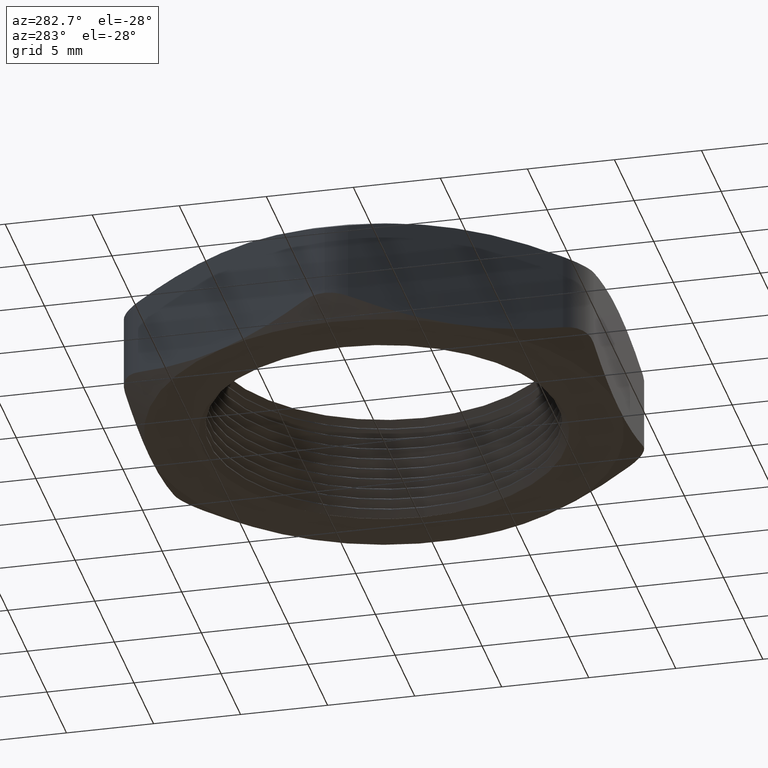
[diagram: clean part render]
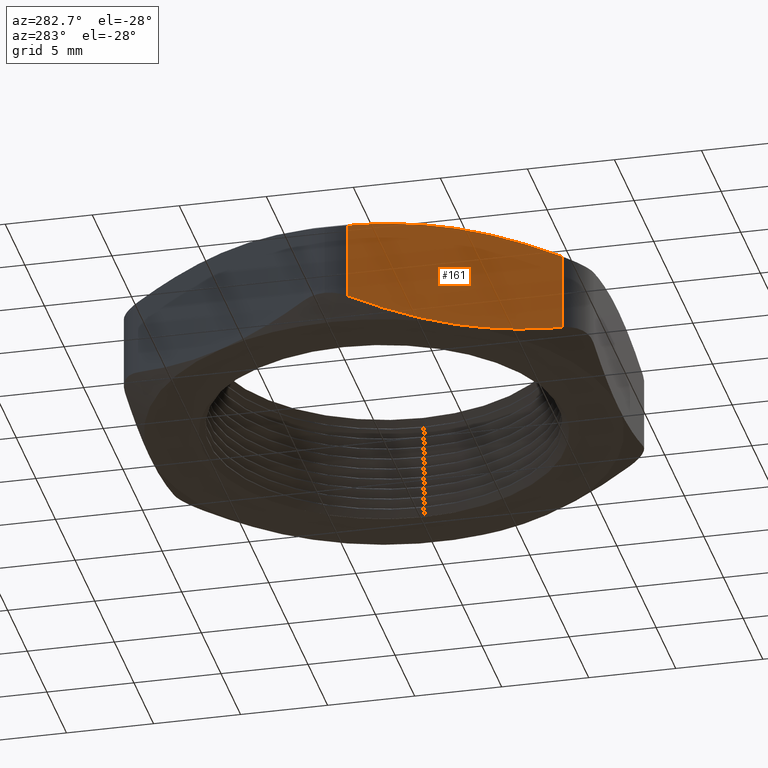
[diagram: same view with one face highlighted and labeled with its STEP entity id]
A machine part, auxiliary view. The second image highlights one B-rep face of the part: STEP entity #161.
In plain terms, the highlighted planar face has unit normal (0.866, 0.5, 0).
Its self-contained STEP definition (entity closure, byte-faithful):
#21 = VERTEX_POINT ( 'NONE', #736 ) ;
#103 = VERTEX_POINT ( 'NONE', #561 ) ;
#161 = ADVANCED_FACE ( 'NONE', ( #1436 ), #1441, .F. ) ;
#162 = EDGE_LOOP ( 'NONE', ( #331, #333, #503, #344, #189, #190 ) ) ;
#169 = VERTEX_POINT ( 'NONE', #1421 ) ;
#188 = EDGE_CURVE ( 'NONE', #21, #343, #1277, .T. ) ;
#189 = ORIENTED_EDGE ( 'NONE', *, *, #1779, .T. ) ;
#190 = ORIENTED_EDGE ( 'NONE', *, *, #191, .F. ) ;
#191 = EDGE_CURVE ( 'NONE', #103, #2285, #1361, .T. ) ;
#331 = ORIENTED_EDGE ( 'NONE', *, *, #332, .F. ) ;
#332 = EDGE_CURVE ( 'NONE', #169, #103, #1627, .T. ) ;
#333 = ORIENTED_EDGE ( 'NONE', *, *, #501, .T. ) ;
#343 = VERTEX_POINT ( 'NONE', #1518 ) ;
#344 = ORIENTED_EDGE ( 'NONE', *, *, #188, .F. ) ;
#501 = EDGE_CURVE ( 'NONE', #169, #502, #1867, .T. ) ;
#502 = VERTEX_POINT ( 'NONE', #1853 ) ;
#503 = ORIENTED_EDGE ( 'NONE', *, *, #504, .F. ) ;
#504 = EDGE_CURVE ( 'NONE', #343, #502, #1850, .T. ) ;
#561 = CARTESIAN_POINT ( 'NONE',  ( -0.4589934640057525800, -0.2649999999999999600, 0.0000000000000000000 ) ) ;
#736 = CARTESIAN_POINT ( 'NONE',  ( -0.5831237718815220900, -0.04999999999999993300, 0.2080936187378568700 ) ) ;
#1210 = CARTESIAN_POINT ( 'NONE',  ( -0.5831237718815220900, -0.04999999999999994700, 0.03190638126214316600 ) ) ;
#1277 = B_SPLINE_CURVE_WITH_KNOTS ( 'NONE', 3,
 ( #1367, #1366, #1365, #1364, #1363, #1362 ),
 .UNSPECIFIED., .F., .F.,
 ( 4, 2, 4 ),
 ( 0.001507538927942153300, 0.004686030383342455800, 0.007864521838742756900 ),
 .UNSPECIFIED. ) ;
#1353 = CARTESIAN_POINT ( 'NONE',  ( -0.5831237718815220900, -0.04999999999999994700, 0.03190638126214316600 ) ) ;
#1354 = CARTESIAN_POINT ( 'NONE',  ( -0.5628122693413815100, -0.08518055437758760600, 0.02195764707233878800 ) ) ;
#1355 = CARTESIAN_POINT ( 'NONE',  ( -0.5423412265098266300, -0.1206374406457596800, 0.01393523314386934900 ) ) ;
#1356 = CARTESIAN_POINT ( 'NONE',  ( -0.5113207380161620700, -0.1743665027923926000, 0.005691994172069311600 ) ) ;
#1357 = CARTESIAN_POINT ( 'NONE',  ( -0.5009282709238906900, -0.1923667838121941000, 0.003575779587992984000 ) ) ;
#1358 = CARTESIAN_POINT ( 'NONE',  ( -0.4800286126102082900, -0.2285660538723212300, 0.0007285516907309985700 ) ) ;
#1359 = CARTESIAN_POINT ( 'NONE',  ( -0.4694840780328567400, -0.2468297235024610500, -3.059823152571587700E-016 ) ) ;
#1360 = CARTESIAN_POINT ( 'NONE',  ( -0.4589934640057525800, -0.2649999999999999600, 0.0000000000000000000 ) ) ;
#1361 = B_SPLINE_CURVE_WITH_KNOTS ( 'NONE', 3,
 ( #1360, #1359, #1358, #1357, #1356, #1355, #1354, #1353 ),
 .UNSPECIFIED., .F., .F.,
 ( 4, 2, 2, 4 ),
 ( 0.007864521838742753400, 0.009447047830300864600, 0.01102957382185897800, 0.01419462580497520200 ),
 .UNSPECIFIED. ) ;
#1362 = CARTESIAN_POINT ( 'NONE',  ( -0.4589934640057526900, -0.2649999999999999600, 0.2399999999999999900 ) ) ;
#1363 = CARTESIAN_POINT ( 'NONE',  ( -0.4800637827398057100, -0.2285051374209495500, 0.2400000000000002700 ) ) ;
#1364 = CARTESIAN_POINT ( 'NONE',  ( -0.5009233622360698100, -0.1923752859088982400, 0.2370658434367602100 ) ) ;
#1365 = CARTESIAN_POINT ( 'NONE',  ( -0.5422754926343549300, -0.1207512950578548000, 0.2260873317065830700 ) ) ;
#1366 = CARTESIAN_POINT ( 'NONE',  ( -0.5627695032311007500, -0.08525462745343606600, 0.2180633001058758800 ) ) ;
#1367 = CARTESIAN_POINT ( 'NONE',  ( -0.5831237718815220900, -0.04999999999999993300, 0.2080936187378568700 ) ) ;
#1421 = CARTESIAN_POINT ( 'NONE',  ( -0.3348631561299832400, -0.4799999999999998700, 0.03190638126214316600 ) ) ;
#1432 = DIRECTION ( 'NONE',  ( -0.4999999999999997200, 0.8660254037844388200, 0.0000000000000000000 ) ) ;
#1433 = DIRECTION ( 'NONE',  ( 0.8660254037844388200, 0.4999999999999997200, 0.0000000000000000000 ) ) ;
#1434 = CARTESIAN_POINT ( 'NONE',  ( -0.6119912853410034400, 1.386414636684289000E-016, 0.2399999999999999900 ) ) ;
#1435 = AXIS2_PLACEMENT_3D ( 'NONE', #1434, #1433, #1432 ) ;
#1436 = FACE_OUTER_BOUND ( 'NONE', #162, .T. ) ;
#1441 = PLANE ( 'NONE',  #1435 ) ;
#1518 = CARTESIAN_POINT ( 'NONE',  ( -0.4589934640057526900, -0.2649999999999999600, 0.2399999999999999900 ) ) ;
#1620 = CARTESIAN_POINT ( 'NONE',  ( -0.4589934640057525800, -0.2649999999999999600, 0.0000000000000000000 ) ) ;
#1621 = CARTESIAN_POINT ( 'NONE',  ( -0.4379231452716994500, -0.3014948625790503900, -2.999963934448695400E-016 ) ) ;
#1622 = CARTESIAN_POINT ( 'NONE',  ( -0.4170635657754355200, -0.3376247140911017300, 0.002934156563239875100 ) ) ;
#1623 = CARTESIAN_POINT ( 'NONE',  ( -0.3757114353771502900, -0.4092487049421451000, 0.01391266829341697400 ) ) ;
#1624 = CARTESIAN_POINT ( 'NONE',  ( -0.3552174247804044700, -0.4447453725465637700, 0.02193669989412409800 ) ) ;
#1625 = CARTESIAN_POINT ( 'NONE',  ( -0.3348631561299832400, -0.4799999999999998700, 0.03190638126214316600 ) ) ;
#1627 = B_SPLINE_CURVE_WITH_KNOTS ( 'NONE', 3,
 ( #1625, #1624, #1623, #1622, #1621, #1620 ),
 .UNSPECIFIED., .F., .F.,
 ( 4, 2, 4 ),
 ( 0.001507538927942154200, 0.004686030383342454000, 0.007864521838742753400 ),
 .UNSPECIFIED. ) ;
#1779 = EDGE_CURVE ( 'NONE', #21, #2285, #1973, .T. ) ;
#1840 = CARTESIAN_POINT ( 'NONE',  ( -0.3348631561299832400, -0.4799999999999998700, 0.2080936187378568700 ) ) ;
#1841 = CARTESIAN_POINT ( 'NONE',  ( -0.3551746586701237700, -0.4448194456224122700, 0.2180423529276612200 ) ) ;
#1842 = CARTESIAN_POINT ( 'NONE',  ( -0.3756457015016787000, -0.4093625593542402600, 0.2260647668561306100 ) ) ;
#1843 = CARTESIAN_POINT ( 'NONE',  ( -0.4066661899953432600, -0.3556334972076074500, 0.2343080058279306800 ) ) ;
#1844 = CARTESIAN_POINT ( 'NONE',  ( -0.4170586570876146900, -0.3376332161878057800, 0.2364242204120070300 ) ) ;
#1845 = CARTESIAN_POINT ( 'NONE',  ( -0.4379583154012971500, -0.3014339461276787100, 0.2392714483092690000 ) ) ;
#1846 = CARTESIAN_POINT ( 'NONE',  ( -0.4485028499786485300, -0.2831702764975389000, 0.2400000000000002100 ) ) ;
#1847 = CARTESIAN_POINT ( 'NONE',  ( -0.4589934640057526900, -0.2649999999999999600, 0.2399999999999999900 ) ) ;
#1850 = B_SPLINE_CURVE_WITH_KNOTS ( 'NONE', 3,
 ( #1847, #1846, #1845, #1844, #1843, #1842, #1841, #1840 ),
 .UNSPECIFIED., .F., .F.,
 ( 4, 2, 2, 4 ),
 ( 0.007864521838742756900, 0.009447047830300868100, 0.01102957382185898100, 0.01419462580497520300 ),
 .UNSPECIFIED. ) ;
#1853 = CARTESIAN_POINT ( 'NONE',  ( -0.3348631561299832400, -0.4799999999999998700, 0.2080936187378568700 ) ) ;
#1864 = DIRECTION ( 'NONE',  ( 0.0000000000000000000, 0.0000000000000000000, 1.000000000000000000 ) ) ;
#1865 = VECTOR ( 'NONE', #1864, 39.37007874015748100 ) ;
#1866 = CARTESIAN_POINT ( 'NONE',  ( -0.3348631561299832400, -0.4799999999999999300, 0.2399999999999999900 ) ) ;
#1867 = LINE ( 'NONE', #1866, #1865 ) ;
#1966 = DIRECTION ( 'NONE',  ( 0.0000000000000000000, 0.0000000000000000000, -1.000000000000000000 ) ) ;
#1967 = VECTOR ( 'NONE', #1966, 39.37007874015748100 ) ;
#1968 = CARTESIAN_POINT ( 'NONE',  ( -0.5831237718815220900, -0.04999999999999994700, 0.2399999999999999900 ) ) ;
#1973 = LINE ( 'NONE', #1968, #1967 ) ;
#2285 = VERTEX_POINT ( 'NONE', #1210 ) ;